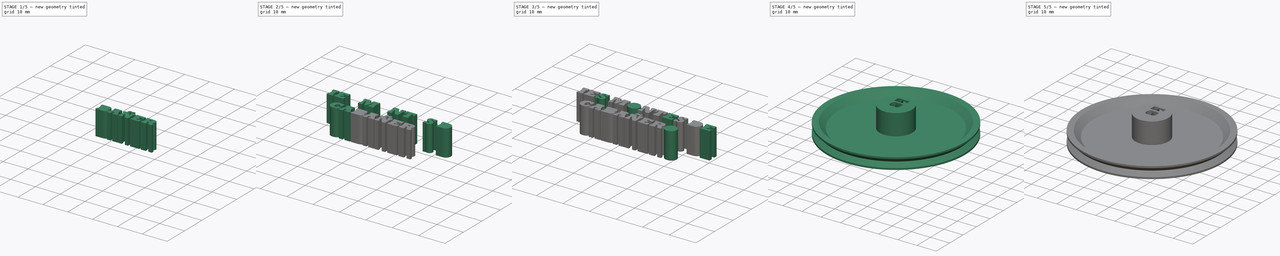
[diagram: build sequence overview — one tinted view per stage of 5, left to right]
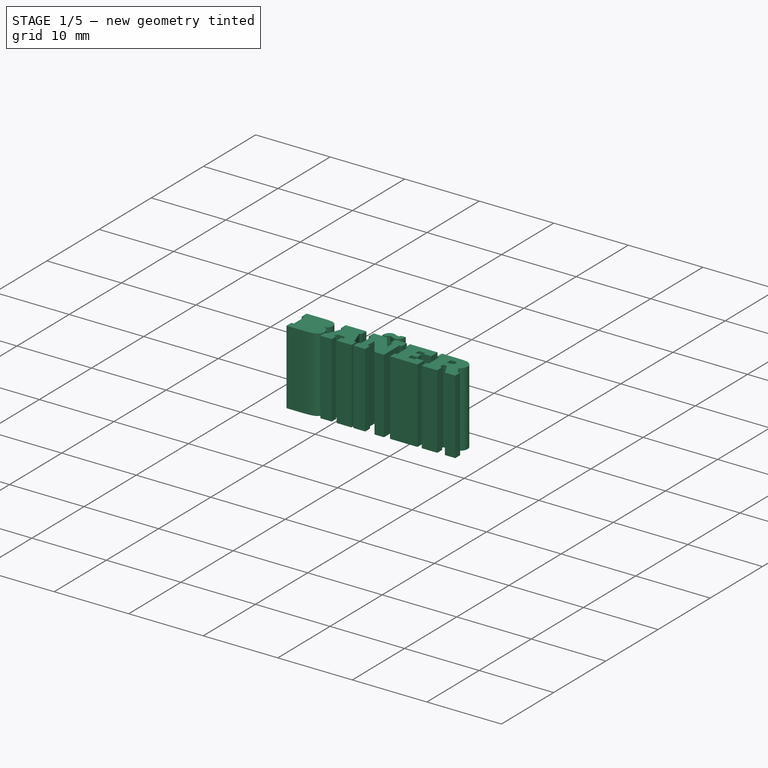
[diagram: stage 1 of 5 — iso view after this stage's code; geometry added in this stage tinted green]
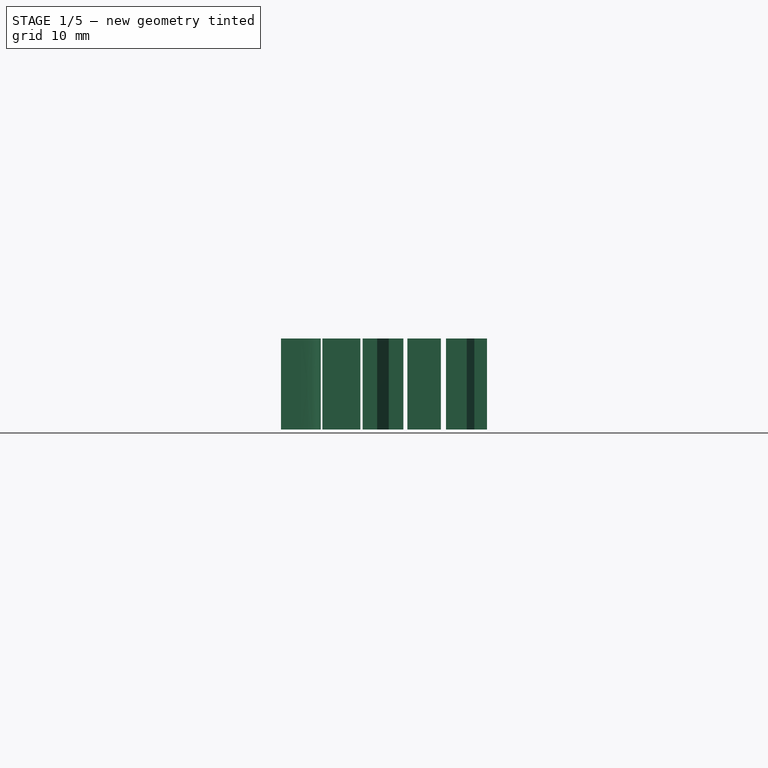
[diagram: stage 1 of 5 — front view after this stage's code; geometry added in this stage tinted green]
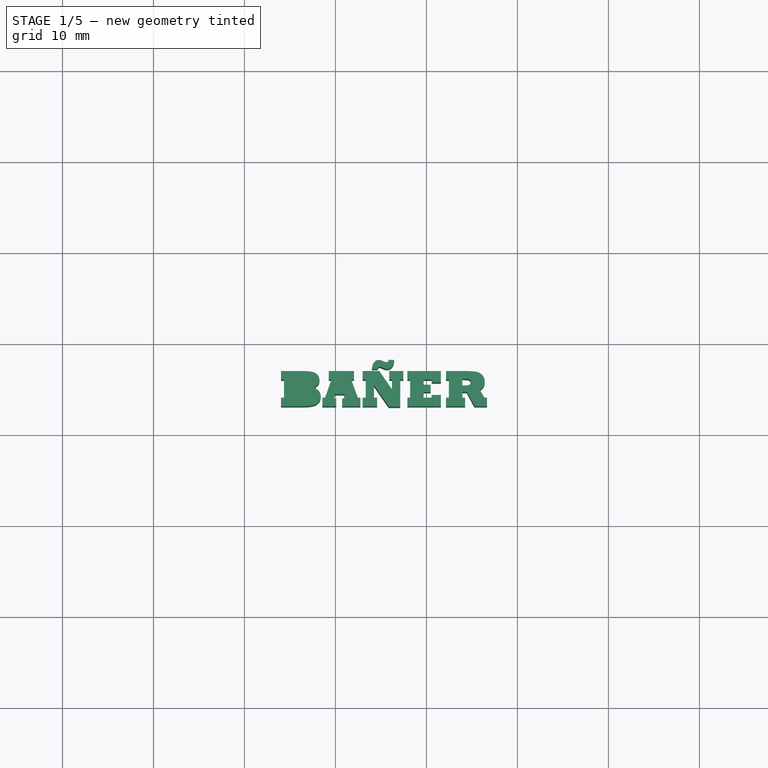
[diagram: stage 1 of 5 — top view after this stage's code; geometry added in this stage tinted green]
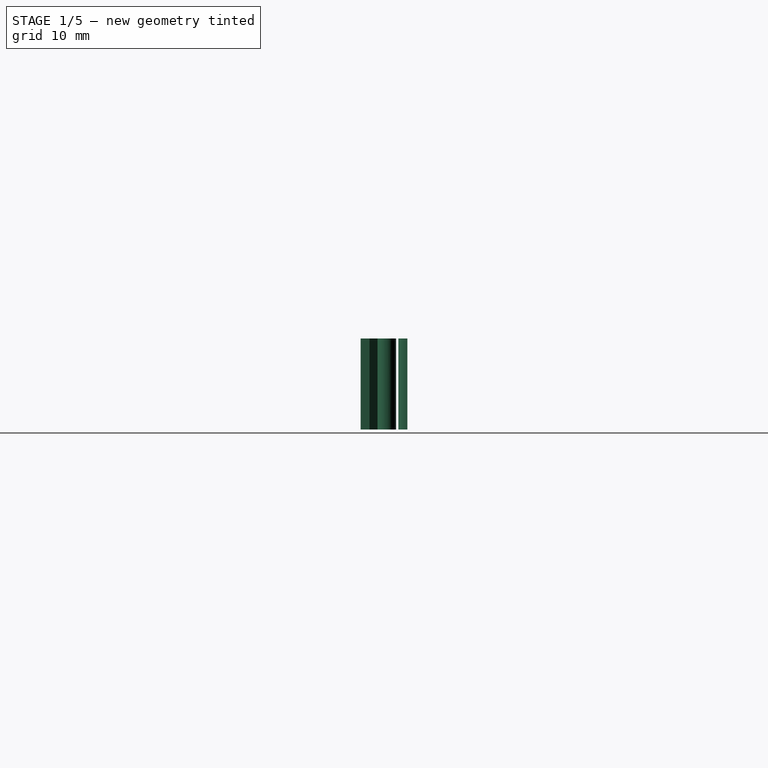
[diagram: stage 1 of 5 — right view after this stage's code; geometry added in this stage tinted green]
FCSTD DOCUMENT  (FreeCAD 0.19R24291 (Git))
Label: ruedaMontesCabañeros
License: All rights reserved
LicenseURL: http://en.wikipedia.org/wiki/All_rights_reserved
objects: Part::Feature×34, Part::Extrusion×29, Part::Cut×11, Part::MultiFuse×3, Sketcher::SketchObject×2, Part::Cylinder×2, PartDesign::Revolution×1, Part::Box×1, PartDesign::FeatureBase×1, PartDesign::Pocket×1, PartDesign::Body×1, Part::FeaturePython×1
note: 89 computed .brp shape members not serialized (recipe doc carries the construction recipe); baked Part::Feature solids carry a one-line shape summary decoded from their .brp

FEATURE [Part::Feature] path101001
  shape: bbox 4.346 x 3.991 x 2e-07 mm, 0 faces, 0 solids (baked)
FEATURE [Part::Feature] path91
  shape: bbox 0.9362 x 0.7589 x 2e-07 mm, 0 faces, 0 solids (baked)
FEATURE [Part::Feature] path97
  shape: bbox 3.681 x 3.853 x 2e-07 mm, 0 faces, 0 solids (baked)
FEATURE [Part::Feature] path89001
  shape: bbox 4.185 x 3.853 x 2e-07 mm, 0 faces, 0 solids (baked)
FEATURE [Part::Feature] path93001
  shape: bbox 4.185 x 3.853 x 2e-07 mm, 0 faces, 0 solids (baked)
FEATURE [Part::Feature] path103
  shape: bbox 3.088 x 3.953 x 2e-07 mm, 0 faces, 0 solids (baked)
FEATURE [Part::Feature] path99001
  shape: bbox 4.504 x 3.853 x 2e-07 mm, 0 faces, 0 solids (baked)
FEATURE [Part::Feature] path91001
  shape: bbox 0.8697 x 0.7035 x 2e-07 mm, 0 faces, 0 solids (baked)
FEATURE [Part::Feature] path91002
  shape: bbox 4.368 x 3.853 x 2e-07 mm, 0 faces, 0 solids (baked)
FEATURE [Part::Feature] path99
  shape: bbox 0.9057 x 0.734 x 2e-07 mm, 0 faces, 0 solids (baked)
FEATURE [Part::Feature] path89
  shape: bbox 0.6897 x 1.066 x 2e-07 mm, 0 faces, 0 solids (baked)
FEATURE [Part::Feature] path93
  shape: bbox 0.6897 x 1.066 x 2e-07 mm, 0 faces, 0 solids (baked)
FEATURE [Part::Feature] path95
  shape: bbox 4.468 x 3.903 x 2e-07 mm, 0 faces, 0 solids (baked)
FEATURE [Part::Feature] path101
  shape: bbox 0.9999 x 2.185 x 2e-07 mm, 0 faces, 0 solids (baked)
FEATURE [Part::Feature] path95001
  shape: bbox 2.446 x 0.986 x 2e-07 mm, 0 faces, 0 solids (baked)
FEATURE [Part::Extrusion] Extrude025
  Base = -> path99001
  Dir = (0,0,-1)
  DirMode = 2
  FaceMakerClass = Part::FaceMakerBullseye
  LengthFwd = 10
  LengthRev = 0
  Solid = true
  Symmetric = false
FEATURE [Part::Extrusion] Extrude017
  Base = -> path91001
  Dir = (0,0,1)
  DirMode = 2
  FaceMakerClass = Part::FaceMakerBullseye
  LengthFwd = 10
  LengthRev = 0
  Placement = pos=(0,0,-10) rot=(0,0,1;0rad)
  Solid = true
  Symmetric = false
FEATURE [Part::Extrusion] Extrude019
  Base = -> path93
  Dir = (0,0,1)
  DirMode = 2
  FaceMakerClass = Part::FaceMakerBullseye
  LengthFwd = 10
  LengthRev = 0
  Placement = pos=(0,0,-10) rot=(0,0,1;0rad)
  Solid = true
  Symmetric = false
FEATURE [Part::Extrusion] Extrude018
  Base = -> path91002
  Dir = (0,0,-1)
  DirMode = 2
  FaceMakerClass = Part::FaceMakerBullseye
  LengthFwd = 10
  LengthRev = 0
  Solid = true
  Symmetric = false
FEATURE [Part::Extrusion] Extrude020
  Base = -> path93001
  Dir = (0,0,-1)
  DirMode = 2
  FaceMakerClass = Part::FaceMakerBullseye
  LengthFwd = 10
  LengthRev = 0
  Solid = true
  Symmetric = false
FEATURE [Part::Extrusion] Extrude021
  Base = -> path95
  Dir = (0,0,-1)
  DirMode = 2
  FaceMakerClass = Part::FaceMakerBullseye
  LengthFwd = 10
  LengthRev = 0
  Solid = true
  Symmetric = false
FEATURE [Part::Extrusion] Extrude022
  Base = -> path95001
  Dir = (0,0,-1)
  DirMode = 2
  FaceMakerClass = Part::FaceMakerBullseye
  LengthFwd = 10
  LengthRev = 0
  Solid = true
  Symmetric = false
FEATURE [Part::Extrusion] Extrude023
  Base = -> path97
  Dir = (0,0,-1)
  DirMode = 2
  FaceMakerClass = Part::FaceMakerBullseye
  LengthFwd = 10
  LengthRev = 0
  Solid = true
  Symmetric = false
FEATURE [Part::Extrusion] Extrude024
  Base = -> path99
  Dir = (0,0,1)
  DirMode = 2
  FaceMakerClass = Part::FaceMakerBullseye
  LengthFwd = 10
  LengthRev = 0
  Placement = pos=(0,0,-10) rot=(0,0,1;0rad)
  Solid = true
  Symmetric = false
FEATURE [Part::Cut] Cut003
  Base = -> Extrude025
  Tool = -> Extrude024
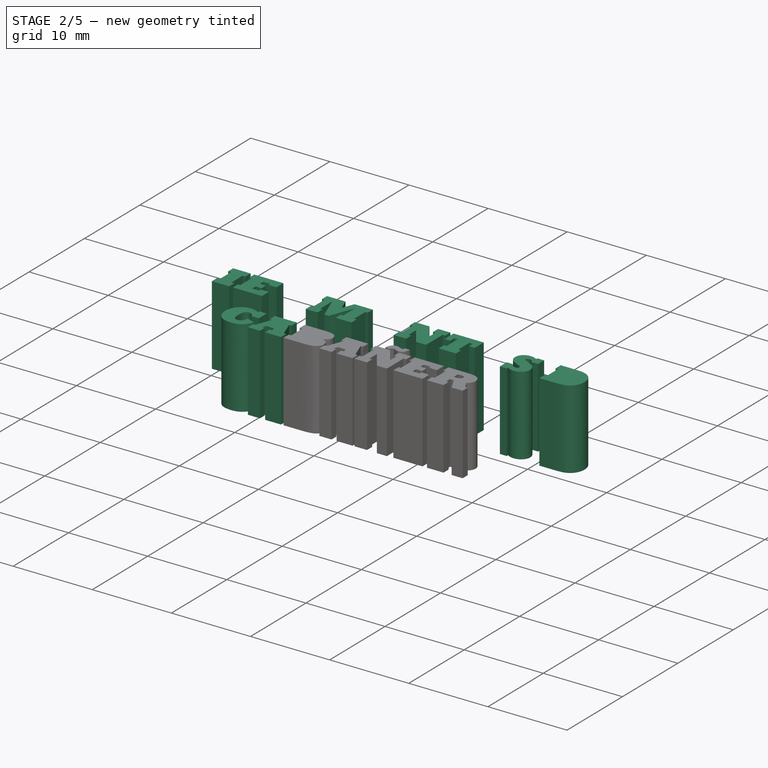
[diagram: stage 2 of 5 — iso view after this stage's code; geometry added in this stage tinted green]
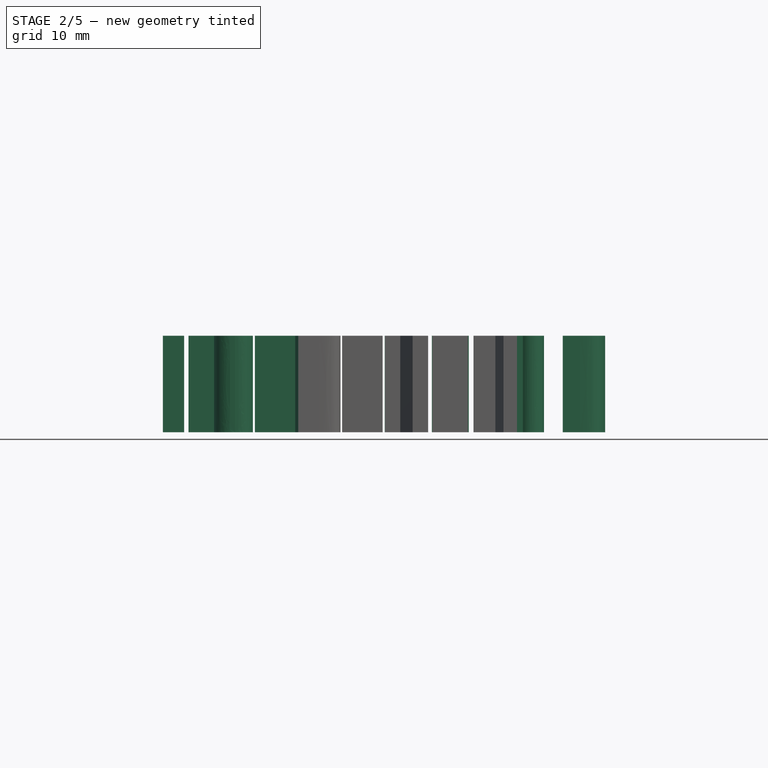
[diagram: stage 2 of 5 — front view after this stage's code; geometry added in this stage tinted green]
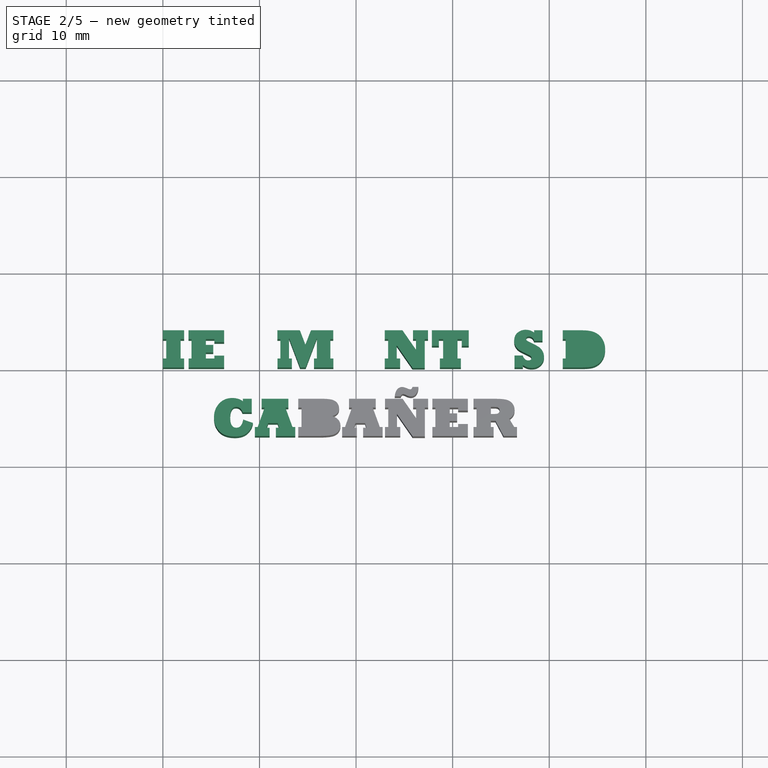
[diagram: stage 2 of 5 — top view after this stage's code; geometry added in this stage tinted green]
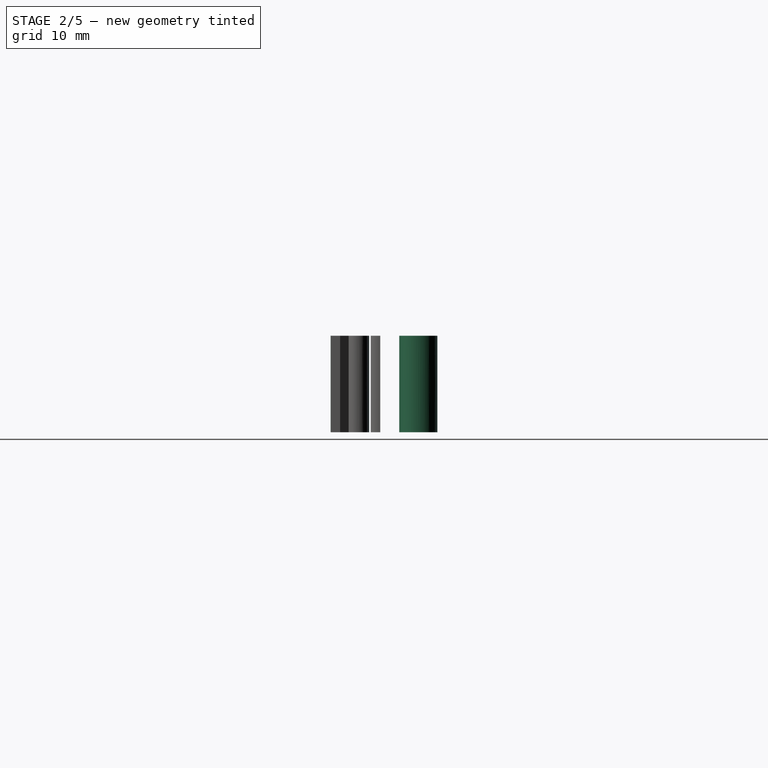
[diagram: stage 2 of 5 — right view after this stage's code; geometry added in this stage tinted green]
FEATURE [Part::Extrusion] Extrude
  Base = -> path65
  Dir = (0,0,-1)
  DirMode = 2
  FaceMakerClass = Part::FaceMakerBullseye
  LengthFwd = 10
  LengthRev = 0
  Solid = true
  Symmetric = false
FEATURE [Part::Extrusion] Extrude015
  Base = -> path89001
  Dir = (0,0,-1)
  DirMode = 2
  FaceMakerClass = Part::FaceMakerBullseye
  LengthFwd = 10
  LengthRev = 0
  Solid = true
  Symmetric = false
FEATURE [Part::Extrusion] Extrude016
  Base = -> path91
  Dir = (0,0,1)
  DirMode = 2
  FaceMakerClass = Part::FaceMakerBullseye
  LengthFwd = 10
  LengthRev = 0
  Placement = pos=(0,0,-10) rot=(0,0,1;0rad)
  Solid = true
  Symmetric = false
FEATURE [Part::Feature] path77
  shape: bbox 3.82 x 3.853 x 2e-07 mm, 0 faces, 0 solids (baked)
FEATURE [Part::Extrusion] Extrude007
  Base = -> path77
  Dir = (0,0,-1)
  DirMode = 2
  FaceMakerClass = Part::FaceMakerBullseye
  LengthFwd = 10
  LengthRev = 0
  Solid = true
  Symmetric = false
FEATURE [Part::Feature] path83001
  shape: bbox 4.39 x 3.853 x 2e-07 mm, 0 faces, 0 solids (baked)
FEATURE [Part::Extrusion] Extrude011
  Base = -> path83001
  Dir = (0,0,-1)
  DirMode = 2
  FaceMakerClass = Part::FaceMakerBullseye
  LengthFwd = 10
  LengthRev = 0
  Solid = true
  Symmetric = false
FEATURE [Part::Feature] path87
  shape: bbox 4.033 x 3.991 x 2e-07 mm, 0 faces, 0 solids (baked)
FEATURE [Part::Extrusion] Extrude013
  Base = -> path87
  Dir = (0,0,-1)
  DirMode = 2
  FaceMakerClass = Part::FaceMakerBullseye
  LengthFwd = 10
  LengthRev = 0
  Solid = true
  Symmetric = false
FEATURE [Part::Feature] path67
  shape: bbox 3.681 x 3.853 x 2e-07 mm, 0 faces, 0 solids (baked)
FEATURE [Part::Extrusion] Extrude001
  Base = -> path67
  Dir = (0,0,-1)
  DirMode = 2
  FaceMakerClass = Part::FaceMakerBullseye
  LengthFwd = 10
  LengthRev = 0
  Solid = true
  Symmetric = false
FEATURE [Part::Feature] path71
  shape: bbox 5.792 x 3.853 x 2e-07 mm, 0 faces, 0 solids (baked)
FEATURE [Part::Extrusion] Extrude003
  Base = -> path71
  Dir = (0,0,-1)
  DirMode = 2
  FaceMakerClass = Part::FaceMakerBullseye
  LengthFwd = 10
  LengthRev = 0
  Solid = true
  Symmetric = false
FEATURE [Part::Feature] path75
  shape: bbox 4.468 x 3.903 x 2e-07 mm, 0 faces, 0 solids (baked)
FEATURE [Part::Extrusion] Extrude006
  Base = -> path75
  Dir = (0,0,-1)
  DirMode = 2
  FaceMakerClass = Part::FaceMakerBullseye
  LengthFwd = 10
  LengthRev = 0
  Solid = true
  Symmetric = false
FEATURE [Part::Feature] path81
  shape: bbox 3.088 x 3.953 x 2e-07 mm, 0 faces, 0 solids (baked)
FEATURE [Part::Extrusion] Extrude009
  Base = -> path81
  Dir = (0,0,-1)
  DirMode = 2
  FaceMakerClass = Part::FaceMakerBullseye
  LengthFwd = 10
  LengthRev = 0
  Solid = true
  Symmetric = false
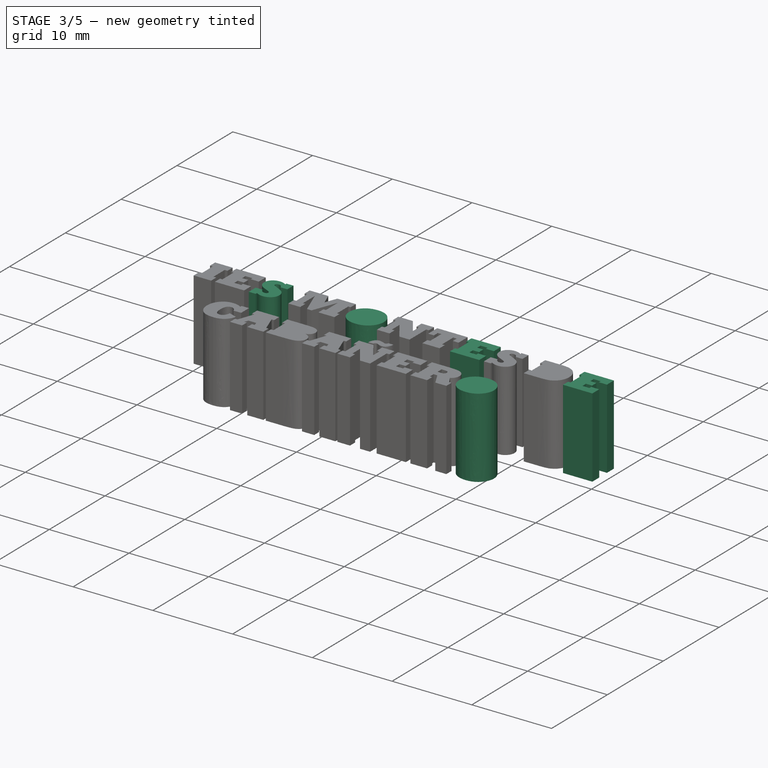
[diagram: stage 3 of 5 — iso view after this stage's code; geometry added in this stage tinted green]
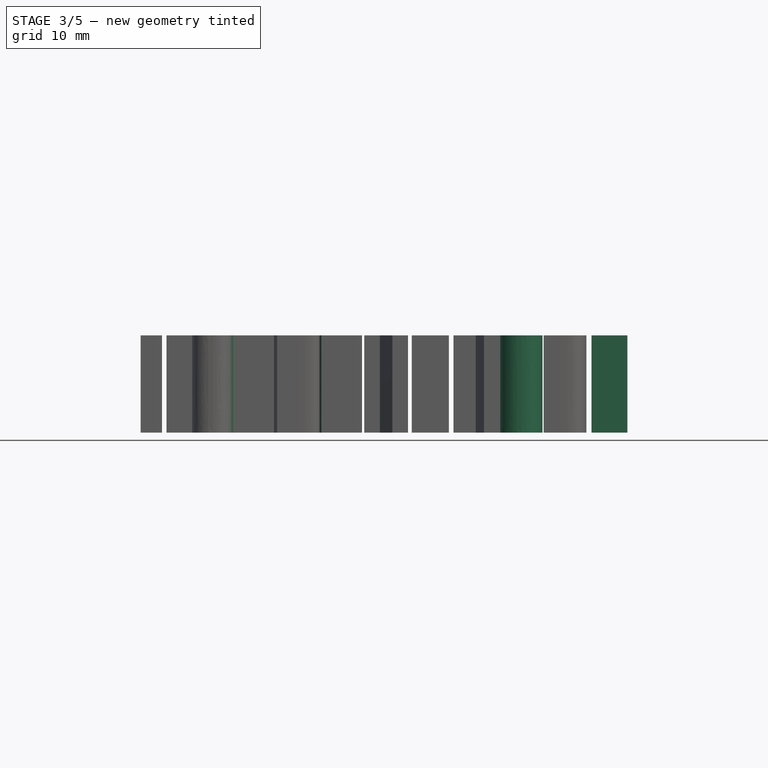
[diagram: stage 3 of 5 — front view after this stage's code; geometry added in this stage tinted green]
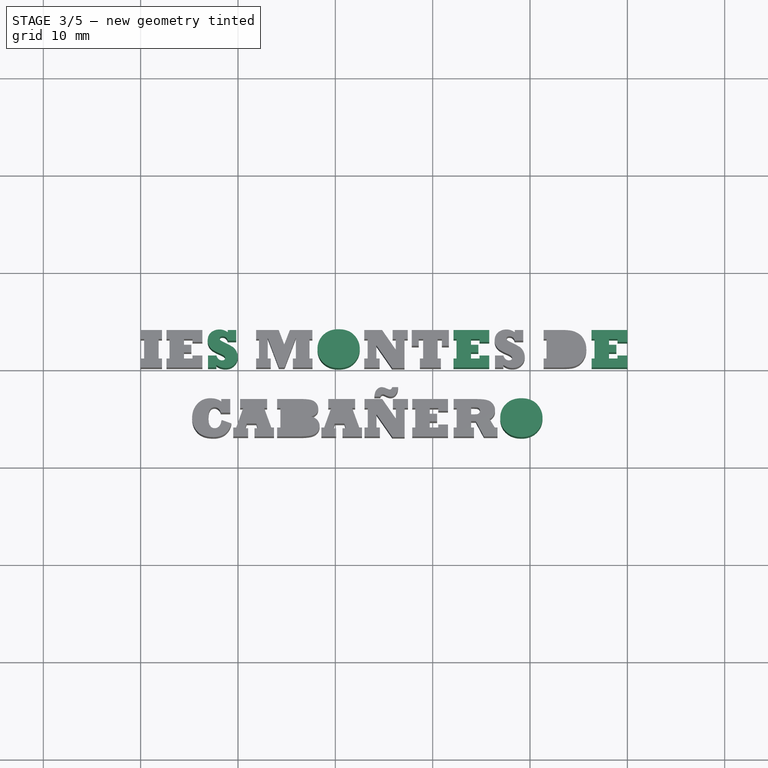
[diagram: stage 3 of 5 — top view after this stage's code; geometry added in this stage tinted green]
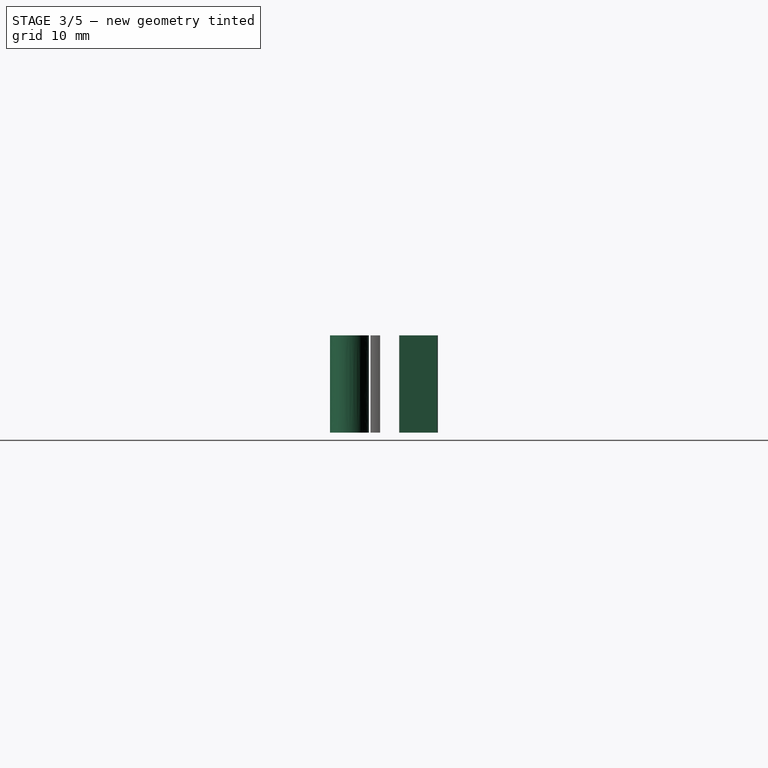
[diagram: stage 3 of 5 — right view after this stage's code; geometry added in this stage tinted green]
FEATURE [Part::Extrusion] Extrude026
  Base = -> path101
  Dir = (0,0,1)
  DirMode = 2
  FaceMakerClass = Part::FaceMakerBullseye
  LengthFwd = 10
  LengthRev = 0
  Placement = pos=(0,0,-10) rot=(0,0,1;0rad)
  Solid = true
  Symmetric = false
FEATURE [Part::Extrusion] Extrude027
  Base = -> path101001
  Dir = (0,0,-1)
  DirMode = 2
  FaceMakerClass = Part::FaceMakerBullseye
  LengthFwd = 10
  LengthRev = 0
  Solid = true
  Symmetric = false
FEATURE [Part::Feature] path65
  shape: bbox 2.196 x 3.853 x 2e-07 mm, 0 faces, 0 solids (baked)
FEATURE [Part::Extrusion] Extrude014
  Base = -> path89
  Dir = (0,0,1)
  DirMode = 2
  FaceMakerClass = Part::FaceMakerBullseye
  LengthFwd = 10
  LengthRev = 0
  Placement = pos=(0,0,-10) rot=(0,0,1;0rad)
  Solid = true
  Symmetric = false
FEATURE [Part::Feature] path73001
  shape: bbox 4.346 x 3.991 x 2e-07 mm, 0 faces, 0 solids (baked)
FEATURE [Part::Extrusion] Extrude005
  Base = -> path73001
  Dir = (0,0,-1)
  DirMode = 2
  FaceMakerClass = Part::FaceMakerBullseye
  LengthFwd = 10
  LengthRev = 0
  Solid = true
  Symmetric = false
FEATURE [Part::Feature] path73
  shape: bbox 0.9999 x 2.185 x 2e-07 mm, 0 faces, 0 solids (baked)
FEATURE [Part::Extrusion] Extrude004
  Base = -> path73
  Dir = (0,0,1)
  DirMode = 2
  FaceMakerClass = Part::FaceMakerBullseye
  LengthFwd = 10
  LengthRev = 0
  Placement = pos=(0,0,-10) rot=(0,0,1;0rad)
  Solid = true
  Symmetric = false
FEATURE [Part::Feature] path85
  shape: bbox 3.681 x 3.853 x 2e-07 mm, 0 faces, 0 solids (baked)
FEATURE [Part::Extrusion] Extrude012
  Base = -> path85
  Dir = (0,0,-1)
  DirMode = 2
  FaceMakerClass = Part::FaceMakerBullseye
  LengthFwd = 10
  LengthRev = 0
  Solid = true
  Symmetric = false
FEATURE [Part::Feature] path69
  shape: bbox 3.088 x 3.953 x 2e-07 mm, 0 faces, 0 solids (baked)
FEATURE [Part::Extrusion] Extrude002
  Base = -> path69
  Dir = (0,0,-1)
  DirMode = 2
  FaceMakerClass = Part::FaceMakerBullseye
  LengthFwd = 10
  LengthRev = 0
  Solid = true
  Symmetric = false
FEATURE [Part::Feature] path79
  shape: bbox 3.681 x 3.853 x 2e-07 mm, 0 faces, 0 solids (baked)
FEATURE [Part::Extrusion] Extrude008
  Base = -> path79
  Dir = (0,0,-1)
  DirMode = 2
  FaceMakerClass = Part::FaceMakerBullseye
  LengthFwd = 10
  LengthRev = 0
  Solid = true
  Symmetric = false
FEATURE [Part::Feature] path83
  shape: bbox 0.9805 x 2.008 x 2e-07 mm, 0 faces, 0 solids (baked)
FEATURE [Part::Extrusion] Extrude010
  Base = -> path83
  Dir = (0,0,1)
  DirMode = 2
  FaceMakerClass = Part::FaceMakerBullseye
  LengthFwd = 10
  LengthRev = 0
  Placement = pos=(0,0,-10) rot=(0,0,1;0rad)
  Solid = true
  Symmetric = false
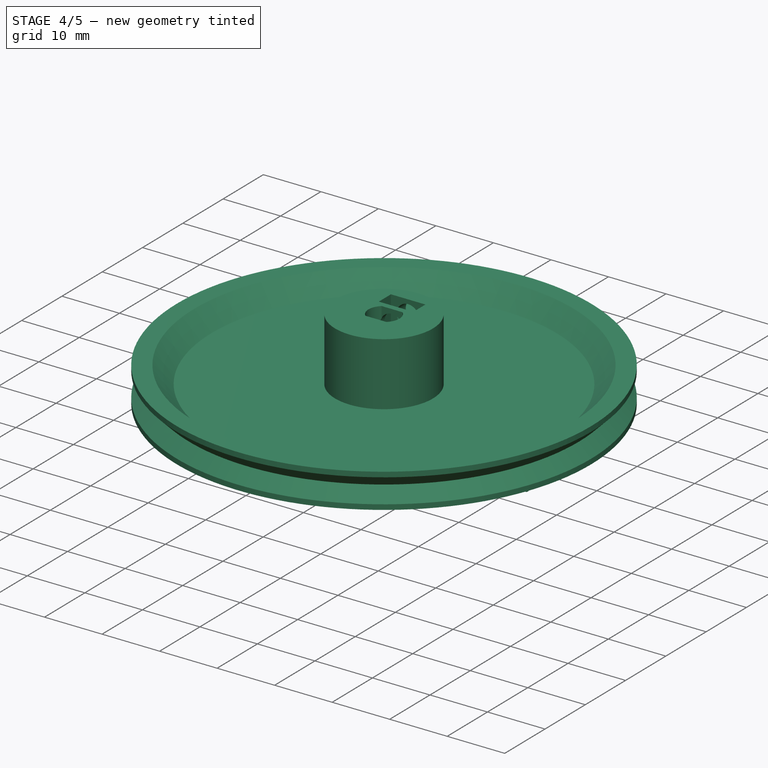
[diagram: stage 4 of 5 — iso view after this stage's code; geometry added in this stage tinted green]
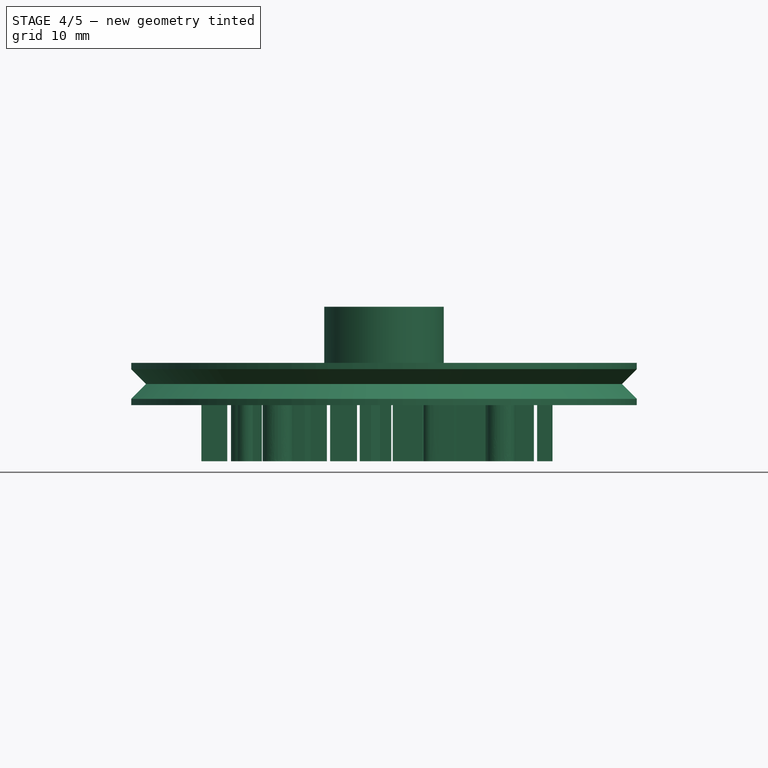
[diagram: stage 4 of 5 — front view after this stage's code; geometry added in this stage tinted green]
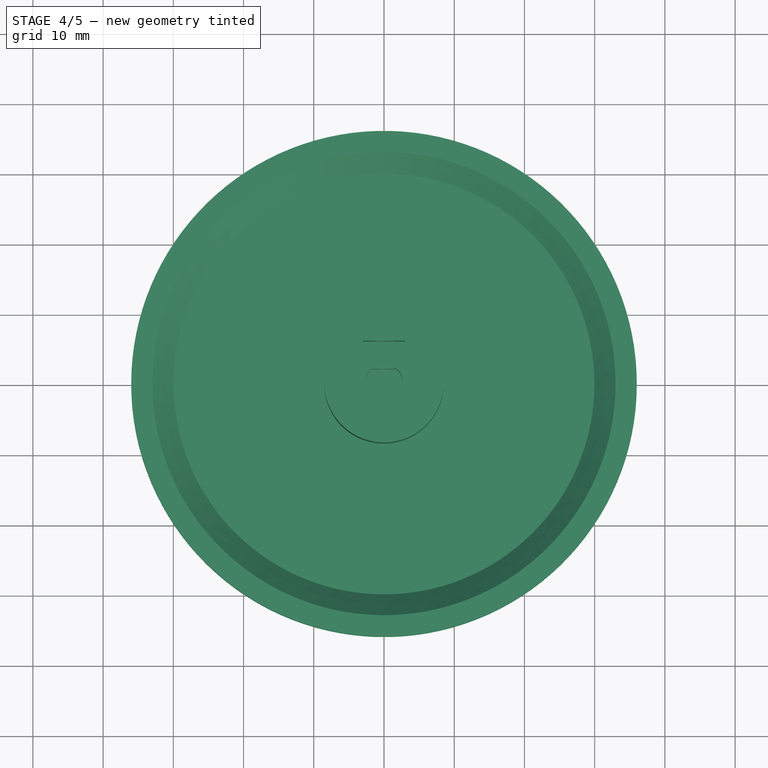
[diagram: stage 4 of 5 — top view after this stage's code; geometry added in this stage tinted green]
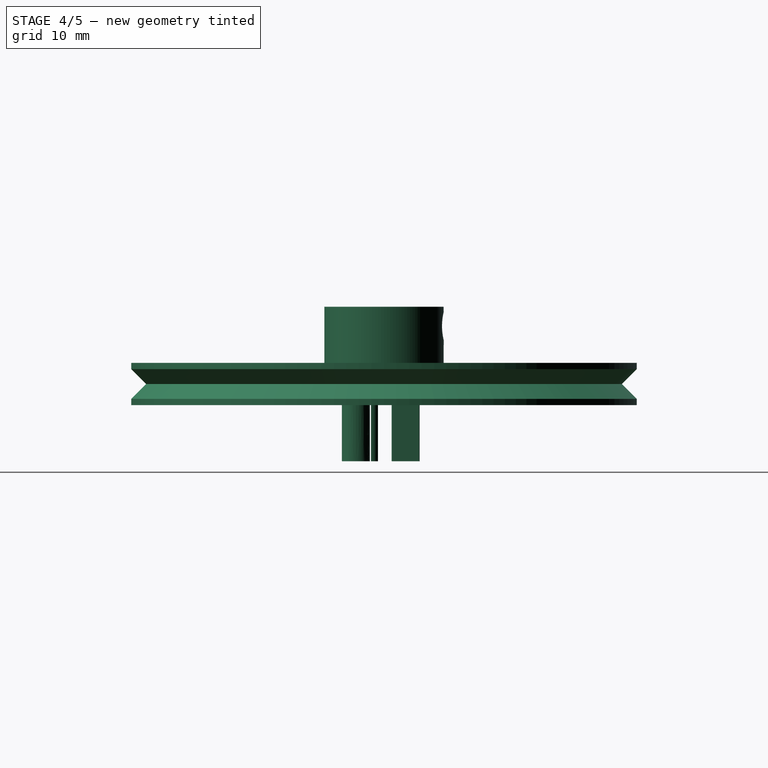
[diagram: stage 4 of 5 — right view after this stage's code; geometry added in this stage tinted green]
FEATURE [PartDesign::Body] Body
  BaseFeature = -> Cut002
  Group = -> [BaseFeature,Sketch,Pocket]
  Origin = -> Origin
  Tip = -> Pocket
FEATURE [Part::Feature] Revolution001001
  Placement = pos=(0,0,0) rot=(1,0,0;1.5708rad)
  shape: bbox 72 x 72 x 6 mm, 10 faces (baked)
FEATURE [Part::Feature] Body001
  shape: bbox 17 x 17 x 11 mm, 16 faces (baked)
FEATURE [Part::MultiFuse] Fusion  label="ruedaBase"
  Shapes = -> [Revolution001001,Body001]
FEATURE [Part::Extrusion] Extrude028
  Base = -> path103
  Dir = (0,0,-1)
  DirMode = 2
  FaceMakerClass = Part::FaceMakerBullseye
  LengthFwd = 10
  LengthRev = 0
  Solid = true
  Symmetric = false
FEATURE [Part::Cut] Cut008
  Base = -> Extrude027
  Tool = -> Extrude026
FEATURE [Part::Cut] Cut006
  Base = -> Extrude015
  Tool = -> Extrude014
FEATURE [Part::MultiFuse] Fusion002
  Shapes = -> [Extrude016,Extrude017]
FEATURE [Part::Cut] Cut004
  Base = -> Extrude018
  Tool = -> Fusion002
FEATURE [Part::Cut] Cut005
  Base = -> Extrude020
  Tool = -> Extrude019
FEATURE [Part::Cut] Cut007
  Base = -> Extrude005
  Tool = -> Extrude004
FEATURE [Part::Cut] Cut001
  Base = -> Extrude011
  Tool = -> Extrude010
FEATURE [Part::MultiFuse] Fusion001  label="MONTESCABANYEROS"
  Placement = pos=(24,291,-11) rot=(0,1,0;3.14159rad)
  Shapes = -> [Extrude,Extrude001,Extrude002,Extrude003,Extrude006,Extrude007,Extrude008,Extrude009,Extrude012,Extrude013,Extrude021,Extrude022,Extrude023,Extrude028,Cut007,Cut001,Cut008,Cut003,Cut004,Cut005,Cut006]
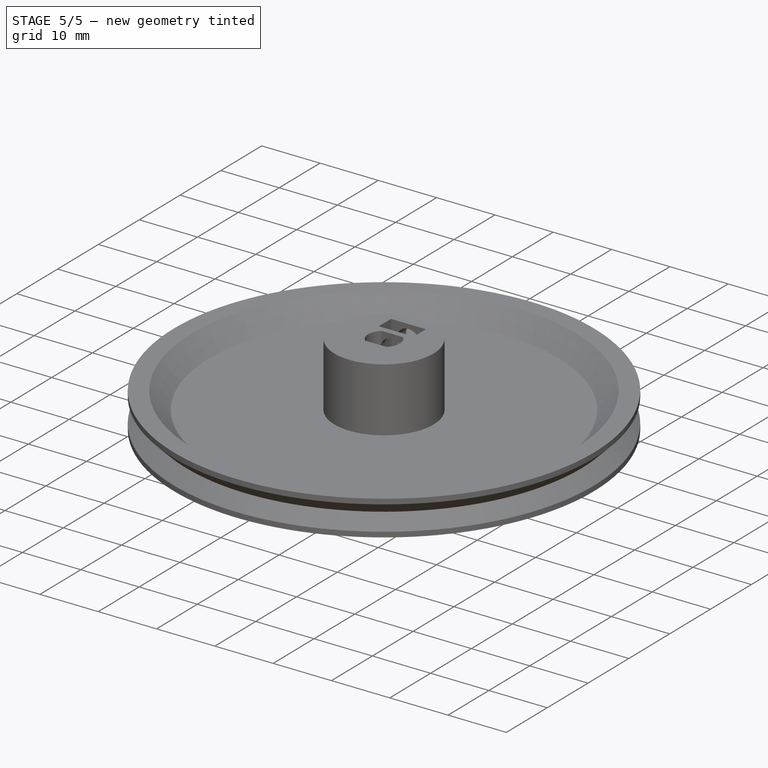
[diagram: stage 5 of 5 — iso view after this stage's code; geometry added in this stage tinted green]
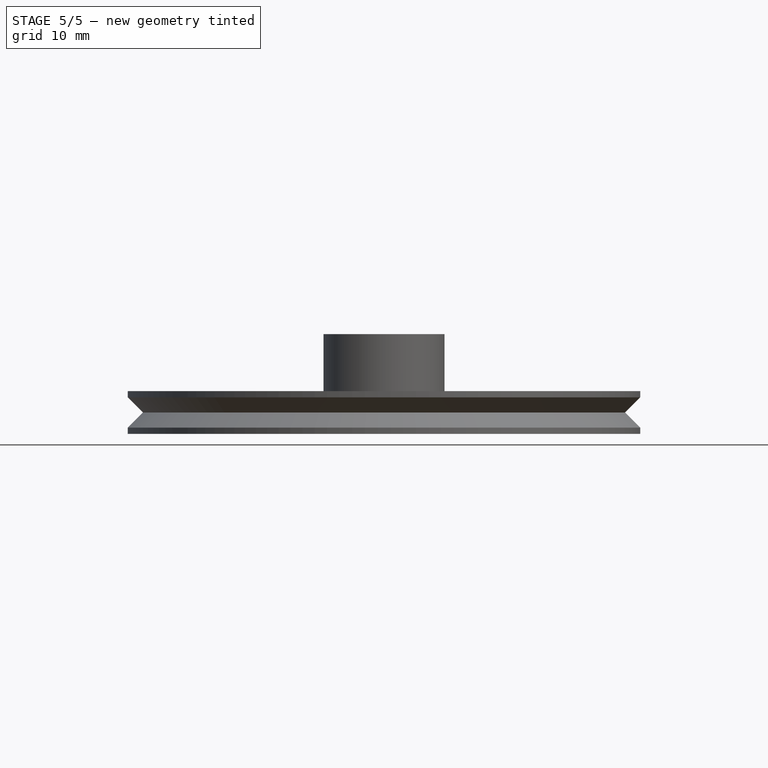
[diagram: stage 5 of 5 — front view after this stage's code; geometry added in this stage tinted green]
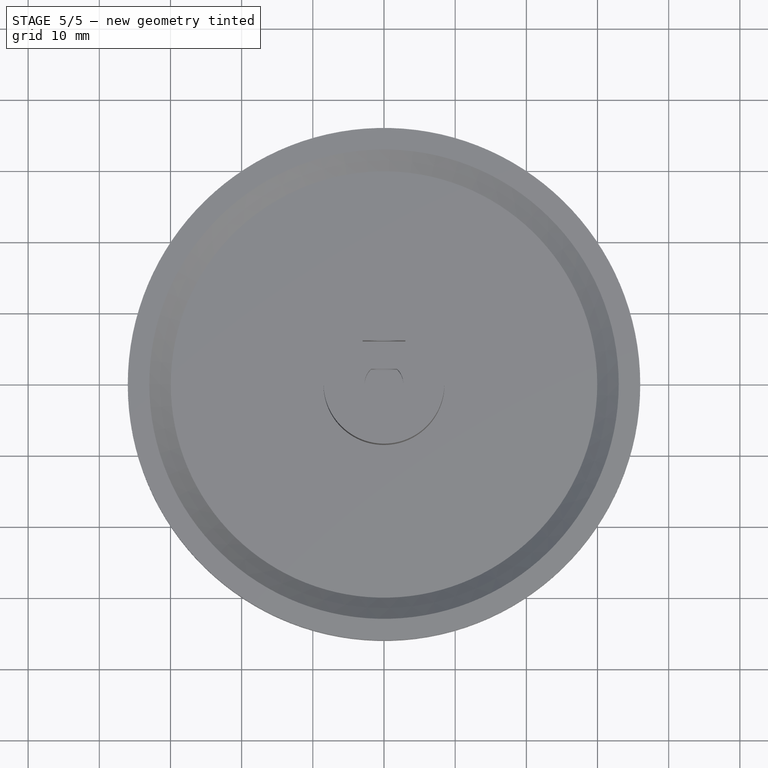
[diagram: stage 5 of 5 — top view after this stage's code; geometry added in this stage tinted green]
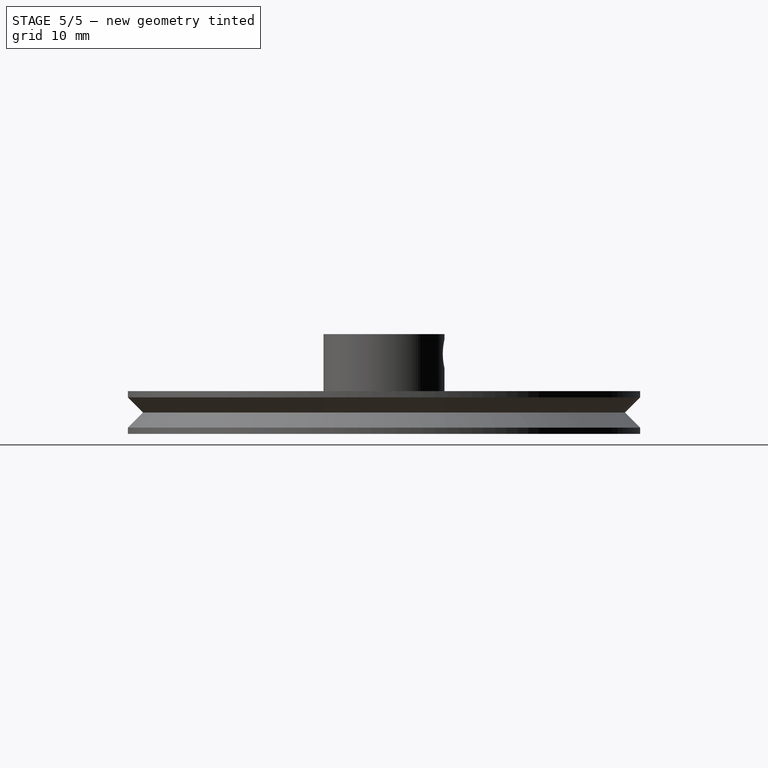
[diagram: stage 5 of 5 — right view after this stage's code; geometry added in this stage tinted green]
FEATURE [Sketcher::SketchObject] Sketch002  label="SectionSketch001"
  FullyConstrained = true
  MapMode = 5
  Placement = pos=(0,0,0) rot=(0,0.707107,0.707107;3.14159rad)
  Support = -> [XZ_Plane002]
  sketch-geometry (19):
    g0: LineSegment StartX=0 StartY=2 StartZ=0 EndX=-5.98528 EndY=2 EndZ=0
    g1: LineSegment StartX=-5.98528 StartY=2 StartZ=0 EndX=-8 EndY=0 EndZ=0
    g2: LineSegment StartX=-8 StartY=0 StartZ=0 EndX=-29.9558 EndY=0 EndZ=0
    g3: LineSegment StartX=-29.9558 StartY=0 StartZ=0 EndX=-32.9779 EndY=3 EndZ=0
    g4: LineSegment StartX=-32.9779 StartY=3 StartZ=0 EndX=-36 EndY=3 EndZ=0
    g5: LineSegment StartX=-36 StartY=3 StartZ=0 EndX=-36 EndY=2.12132 EndZ=0
    g6: LineSegment StartX=-36 StartY=2.12132 StartZ=0 EndX=-33.8787 EndY=0 EndZ=0
    g7: LineSegment StartX=-33.8787 StartY=0 StartZ=0 EndX=-36 EndY=-2.12132 EndZ=0
    g8: LineSegment StartX=-36 StartY=-2.12132 StartZ=0 EndX=-36 EndY=-3 EndZ=0
    g9: LineSegment StartX=-36 StartY=-3 StartZ=0 EndX=0 EndY=-3 EndZ=0
    g10: LineSegment StartX=0 StartY=-3 StartZ=0 EndX=0 EndY=2 EndZ=0
    g11: Circle CenterX=0 CenterY=0 CenterZ=0 NormalX=0 NormalY=0 NormalZ=1 AngleXU=0 Radius=36
    g12: LineSegment StartX=0 StartY=0 StartZ=0 EndX=-21.182 EndY=21.182 EndZ=0
    g13: LineSegment StartX=0 StartY=18 StartZ=0 EndX=-18 EndY=18 EndZ=0
    g14: ArcOfCircle CenterX=0 CenterY=0 CenterZ=0 NormalX=0 NormalY=0 NormalZ=1 AngleXU=0 Radius=29.9558 StartAngle=2.35619 EndAngle=3.14159
    g15: LineSegment StartX=-29.9558 StartY=0 StartZ=0 EndX=-36 EndY=6 EndZ=0
    g16: LineSegment StartX=-36 StartY=0 StartZ=0 EndX=-36 EndY=6 EndZ=0
    g17: LineSegment StartX=-18.9779 StartY=6 StartZ=0 EndX=-18.9779 EndY=0 EndZ=0
    g18: LineSegment StartX=-8 StartY=0 StartZ=0 EndX=-1.95584 EndY=6 EndZ=0
  constraints (56):
    c: Coincident(g0,g1)
    c: Coincident(g1,g2)
    c: Coincident(g2,g3)
    c: Coincident(g3,g4)
    c: Coincident(g4,g5)
    c: Coincident(g5,g6)
    c: Coincident(g6,g7)
    c: Coincident(g7,g8)
    c: Coincident(g8,g9)
    c: Coincident(g9,g10)
    c: Coincident(g10,g0)
    c: Horizontal(g9)
    c: Horizontal(g2)
    c: Horizontal(g0)
    c: Horizontal(g4)
    c: Vertical(g10)
    c: Vertical(g5)
    c: Vertical(g8)
    c: DistanceY(g-1,g0) = 2
    c: PointOnObject(g1,g-1)
    c: DistanceX(g-1,g1) = -8
    c: PointOnObject(g9,g-2)
    c: DistanceY(g-1,g9) = -3
    c: DistanceX(g8,g9) = 36
    c: Coincident(g11,g-1)
    c: Radius(g11) = 36
    c: Coincident(g12,g-1)
    c: Horizontal(g13)
    c: PointOnObject(g13,g-2)
    c: PointOnObject(g13,g12)
    c: Angle(g-1,g12) = 2.35619
    c: DistanceX(g13) = -18
    c: Distance(g12,g13) = 4.5
    c: Coincident(g14,g-1)
    c: Coincident(g14,g12)
    c: PointOnObject(g14,g-1)
    c: Coincident(g2,g14)
    c: Angle(g-1,g6) = 2.35619
    c: Angle(g6,g7) = 1.5708
    c: Equal(g6,g7)
    c: PointOnObject(g6,g-1)
    c: Distance(g7) = 3
    c: Coincident(g15,g2)
    c: PointOnObject(g16,g11)
    c: PointOnObject(g16,g-1)
    c: Vertical(g16)
    c: Coincident(g16,g15)
    c: DistanceY(g16) = 6
    c: PointOnObject(g3,g15)
    c: Vertical(g17)
    c: Symmetric(g18,g2,g17)
    c: Coincident(g18,g1)
    c: Equal(g18,g15)
    c: Symmetric(g15,g18,g17)
    c: PointOnObject(g0,g18)
    c: Equal(g5,g8)
FEATURE [PartDesign::Revolution] Revolution001
  AllowMultiFace = false
  Angle = 360
  Axis = (0,0,1)
  Base = (0,0,0)
  Placement = pos=(0,0,0) rot=(1,0,0;1.5708rad)
  Profile = -> Sketch002
  ReferenceAxis = -> Sketch002 [V_Axis]
FEATURE [Part::Box] Box  label="Cubo"
  AttacherType = Attacher::AttachEngine3D
  Height = 10
  Length = 6
  Placement = pos=(-3,3,2.5) rot=(0,0,1;0rad)
  Width = 3
FEATURE [Part::Cylinder] Cylinder  label="Cilindro"
  Angle = 360
  AttacherType = Attacher::AttachEngine3D
  Height = 11
  Radius = 8.5
FEATURE [Part::Cylinder] Cylinder002  label="Cilindro002"
  Angle = 360
  AttacherType = Attacher::AttachEngine3D
  Height = 10
  Placement = pos=(0,10.2,8.25) rot=(1,0,0;1.5708rad)
  Radius = 2
FEATURE [Part::Cut] Cut
  Base = -> Cylinder
  Tool = -> Box
FEATURE [Part::Cut] Cut002
  Base = -> Cut
  Placement = pos=(0,0,-1) rot=(0,0,1;0rad)
  Tool = -> Cylinder002
FEATURE [Sketcher::SketchObject] Sketch
  FullyConstrained = true
  MapMode = 2
  Placement = pos=(0,0,11) rot=(0,0,1;0rad)
  sketch-geometry (4):
    g0: ArcOfCircle CenterX=0 CenterY=0 CenterZ=0 NormalX=0 NormalY=0 NormalZ=1 AngleXU=0 Radius=2.7 StartAngle=2.30742 EndAngle=3.97576
    g1: LineSegment StartX=-1.81384 StartY=2 StartZ=0 EndX=1.81384 EndY=2 EndZ=0
    g2: LineSegment StartX=1.81384 StartY=-2 StartZ=0 EndX=-1.81384 EndY=-2 EndZ=0
    g3: ArcOfCircle CenterX=0 CenterY=0 CenterZ=0 NormalX=0 NormalY=0 NormalZ=1 AngleXU=0 Radius=2.7 StartAngle=5.44901 EndAngle=7.11736
  constraints (12):
    c: Coincident(g0,g-1)
    c: Radius(g0) = 2.7
    c: Horizontal(g2)
    c: DistanceY(g2,g1) = 4
    c: Coincident(g0,g1)
    c: Coincident(g3,g1)
    c: Equal(g0,g3)
    c: Coincident(g0,g3)
    c: Coincident(g2,g3)
    c: Coincident(g2,g0)
    c: Symmetric(g1,g0,g-2)
    c: Symmetric(g1,g2,g-1)
FEATURE [PartDesign::FeatureBase] BaseFeature
  BaseFeature = -> Cut002
FEATURE [PartDesign::Pocket] Pocket
  BaseFeature = -> BaseFeature
  Length = 6
  Length2 = 100
  Profile = -> Sketch
  Type = 0
FEATURE [Part::Cut] Cut009
  Base = -> Fusion
  Tool = -> Fusion001
FEATURE [Part::Feature] logo_Ies_montes_de_caba__eros001
  shape: bbox 117.8 x 87 x 5 mm, 142 faces, 0 solids (baked)
FEATURE [Part::Feature] logo_Ies_montes_de_caba__eros001001
  shape: bbox 117.8 x 87 x 5 mm, 142 faces, 0 solids (baked)
FEATURE [Part::FeaturePython] Clone  label="logo_Ies_montes_de_caba__eros001002"  # Draft clone (typed FeaturePython)
  AttacherType = Attacher::AttachEngine3D
  Fuse = false
  Objects = -> [logo_Ies_montes_de_caba__eros001001]
  Placement = pos=(3,-5,-2.5) rot=(0,1,0;3.14159rad)
  Scale = (0.25,0.25,0.25)
FEATURE [Part::Feature] Clone_solid  label="logo_Ies_montes_de_caba__eros001002 (Solid)"
  shape: bbox 29.45 x 21.75 x 1.25 mm, 142 faces (baked)
FEATURE [Part::Cut] Cut010
  Base = -> Cut009
  Tool = -> Clone_solid
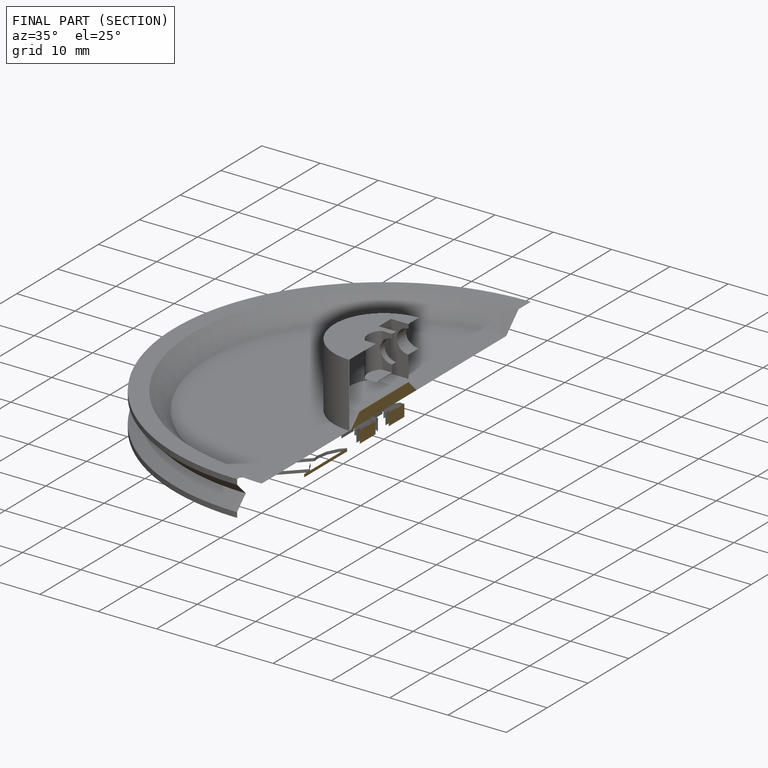
[diagram: finished part — half-section view (interior)]
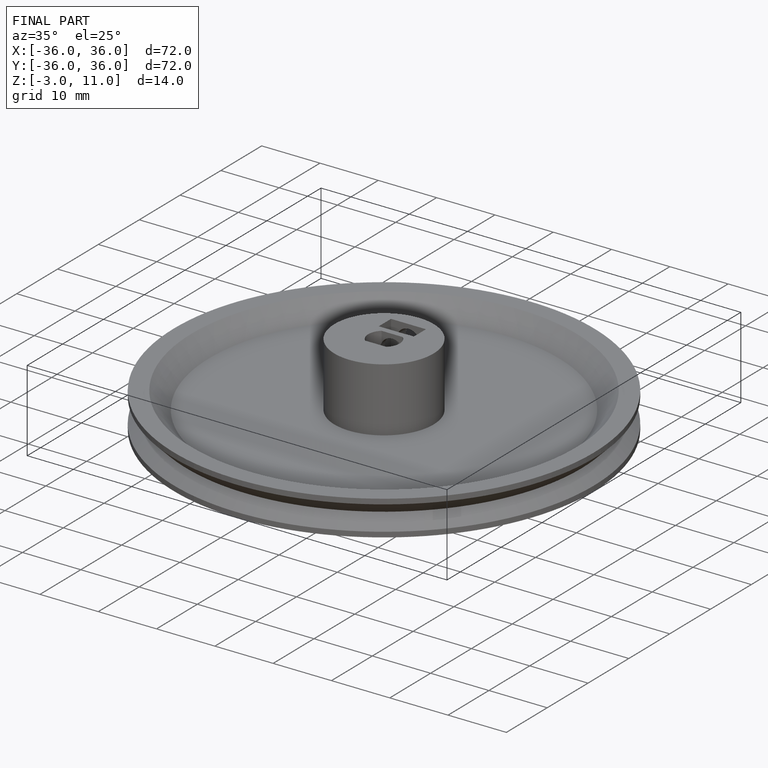
[diagram: finished part — iso view with bounding-box wireframe]
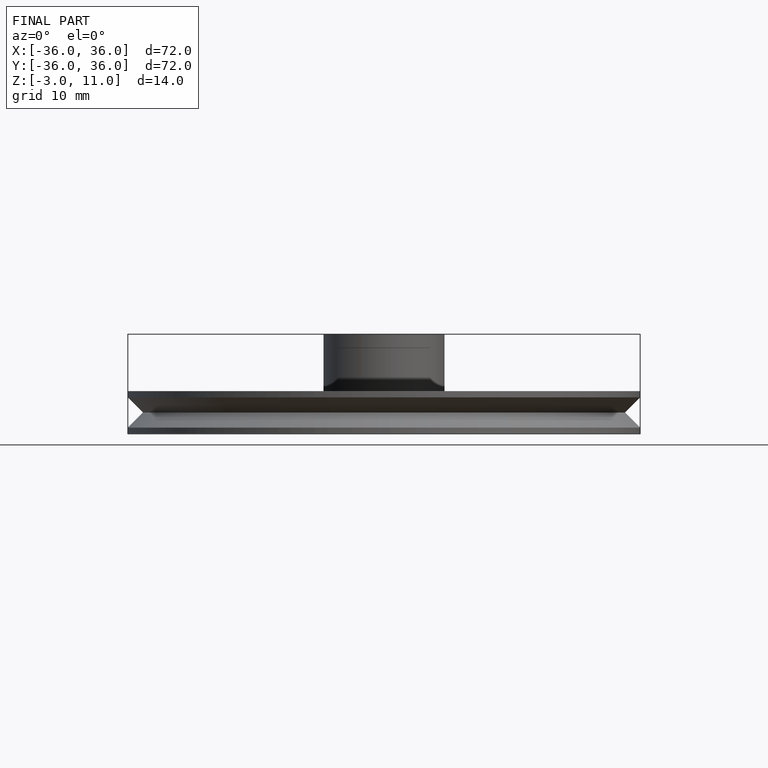
[diagram: finished part — front view with bounding-box wireframe]
